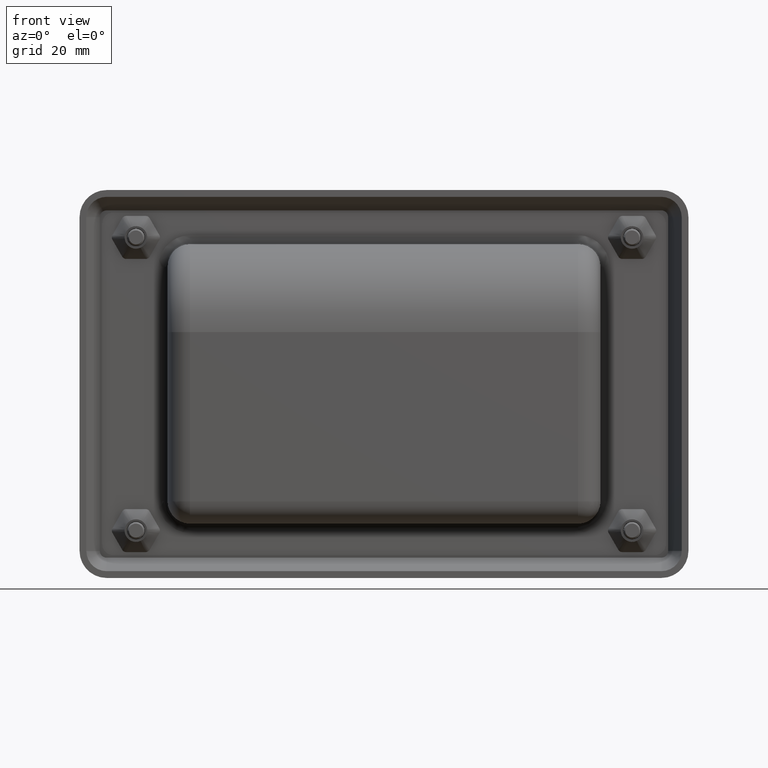
[diagram: clean part render]
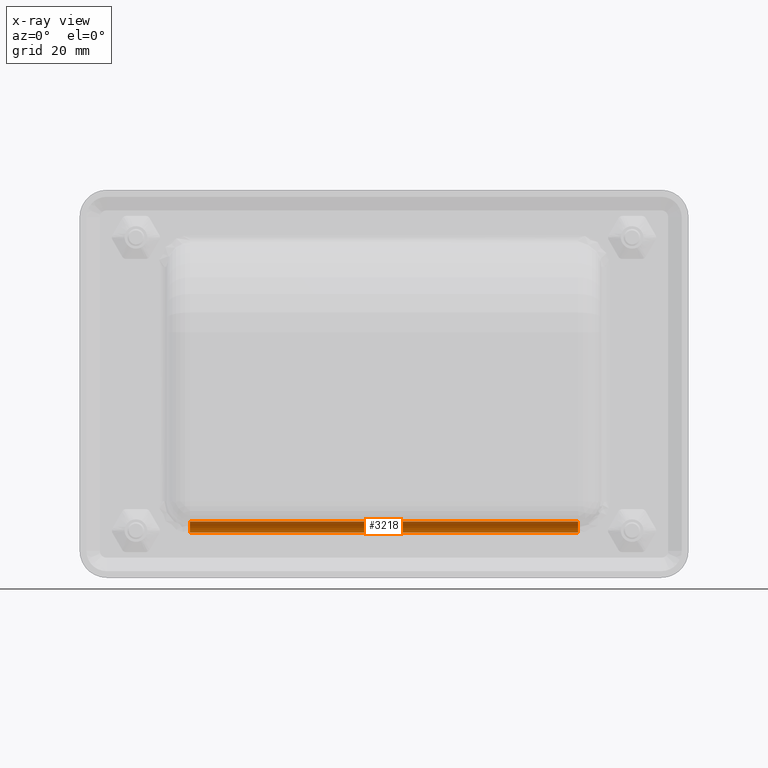
[diagram: x-ray — body ghosted, one internal face saturated and labeled with its STEP entity id]
A machine part, front view, then the same camera in x-ray: the body is ghosted and one INTERNAL B-rep face — a face not visible from any outside direction — is saturated and labeled: STEP entity #3218.
In plain terms, the highlighted cylindrical surface (edge-blend (fillet) strip) has radius 2.5 mm, axis along (1, 0, 0).
Its self-contained STEP definition (entity closure, byte-faithful):
#403=FACE_OUTER_BOUND('',#617,.T.);
#617=EDGE_LOOP('',(#2709,#2710,#2711,#2712));
#875=LINE('',#6732,#1119);
#876=LINE('',#6735,#1120);
#1119=VECTOR('',#4134,86.);
#1120=VECTOR('',#4137,86.);
#1273=CIRCLE('',#3466,2.5);
#1274=CIRCLE('',#3467,2.5);
#1555=VERTEX_POINT('',#6728);
#1556=VERTEX_POINT('',#6729);
#1557=VERTEX_POINT('',#6731);
#1558=VERTEX_POINT('',#6733);
#1965=EDGE_CURVE('',#1555,#1556,#1273,.T.);
#1966=EDGE_CURVE('',#1556,#1557,#875,.T.);
#1967=EDGE_CURVE('',#1557,#1558,#1274,.T.);
#1968=EDGE_CURVE('',#1558,#1555,#876,.T.);
#2709=ORIENTED_EDGE('',*,*,#1965,.T.);
#2710=ORIENTED_EDGE('',*,*,#1966,.T.);
#2711=ORIENTED_EDGE('',*,*,#1967,.T.);
#2712=ORIENTED_EDGE('',*,*,#1968,.T.);
#3059=CYLINDRICAL_SURFACE('',#3465,2.5);
#3218=ADVANCED_FACE('',(#403),#3059,.T.);
#3465=AXIS2_PLACEMENT_3D('',#6727,#4130,#4131);
#3466=AXIS2_PLACEMENT_3D('',#6730,#4132,#4133);
#3467=AXIS2_PLACEMENT_3D('',#6734,#4135,#4136);
#4130=DIRECTION('center_axis',(1.,0.,0.));
#4131=DIRECTION('ref_axis',(0.,0.707106781186548,0.707106781186547));
#4132=DIRECTION('center_axis',(1.,0.,0.));
#4133=DIRECTION('ref_axis',(0.,1.,0.));
#4134=DIRECTION('',(1.,0.,0.));
#4135=DIRECTION('center_axis',(-1.,0.,0.));
#4136=DIRECTION('ref_axis',(0.,0.,1.));
#4137=DIRECTION('',(-1.,0.,0.));
#6727=CARTESIAN_POINT('Origin',(0.,-2.,-33.));
#6728=CARTESIAN_POINT('',(-43.,0.5,-33.));
#6729=CARTESIAN_POINT('',(-43.,-2.,-30.5));
#6730=CARTESIAN_POINT('Origin',(-43.,-2.,-33.));
#6731=CARTESIAN_POINT('',(43.,-2.,-30.5));
#6732=CARTESIAN_POINT('',(0.,-2.,-30.5));
#6733=CARTESIAN_POINT('',(43.,0.5,-33.));
#6734=CARTESIAN_POINT('Origin',(43.,-2.,-33.));
#6735=CARTESIAN_POINT('',(0.,0.5,-33.));